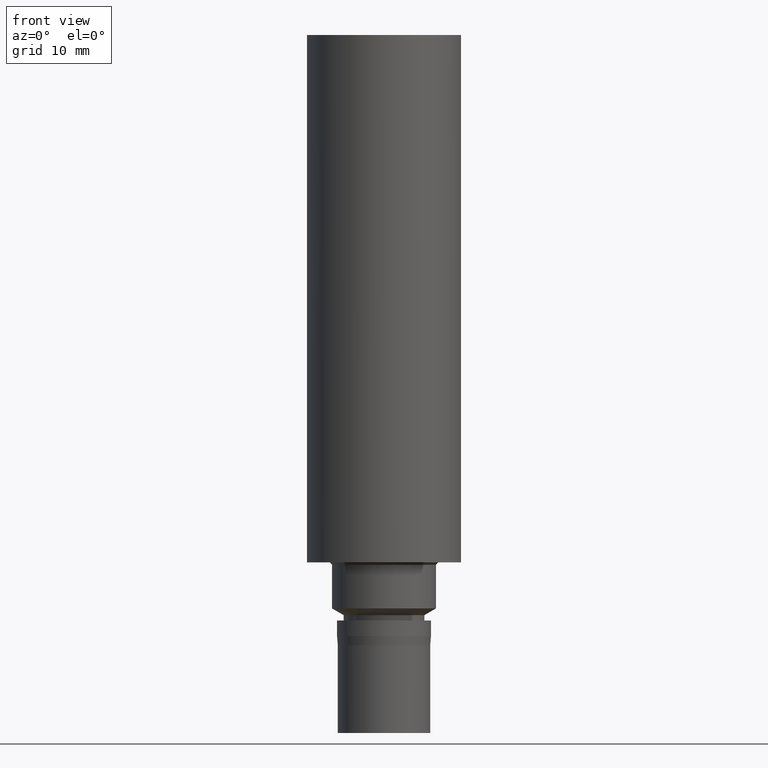
[diagram: clean part render]
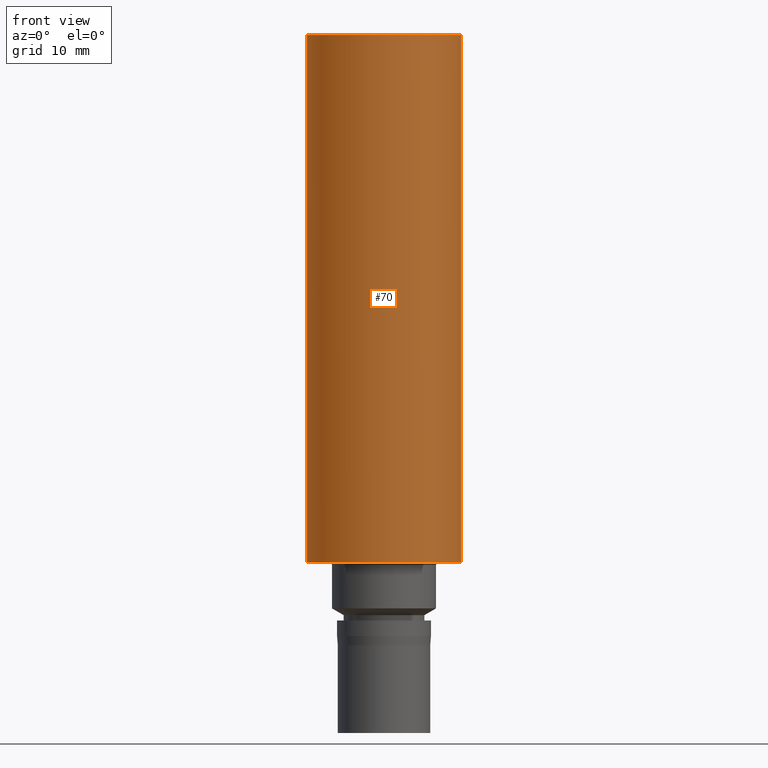
[diagram: same view with one face highlighted and labeled with its STEP entity id]
A machine part, front view. The second image highlights one B-rep face of the part: STEP entity #70.
In plain terms, the highlighted cylindrical surface (bore or boss wall) has radius 10 mm, axis along (0, 0, -1).
Its self-contained STEP definition (entity closure, byte-faithful):
#67=EDGE_CURVE('Unnamed[1]',#155,#155,#156,.T.);
#70=ADVANCED_FACE('Unnamed[1]',(#159,#160),#161,.T.);
#87=EDGE_CURVE('Unnamed[1]',#184,#184,#185,.T.);
#155=VERTEX_POINT('',#263);
#156=CIRCLE('',#264,10.0000000000007);
#159=FACE_BOUND('',#268,.T.);
#160=FACE_BOUND('',#269,.T.);
#161=CYLINDRICAL_SURFACE('',#270,10.0000000000001);
#184=VERTEX_POINT('',#299);
#185=CIRCLE('',#300,9.99999999999962);
#263=CARTESIAN_POINT('',(-5.51091059616327E-015,10.0000000000007,90.0000000000029));
#264=AXIS2_PLACEMENT_3D('',#377,#378,#379);
#268=EDGE_LOOP('',(#381));
#269=EDGE_LOOP('',(#382));
#270=AXIS2_PLACEMENT_3D('',#383,#384,#385);
#299=CARTESIAN_POINT('',(-1.34711147906211E-015,9.99999999999962,22.0000000000003));
#300=AXIS2_PLACEMENT_3D('',#407,#408,#409);
#377=CARTESIAN_POINT('',(-5.51091059616327E-015,-1.10218211923265E-014,90.0000000000029));
#378=DIRECTION('',(6.12323399573677E-017,1.22464679914735E-016,-1.0));
#379=DIRECTION('',(-1.23259516440783E-032,1.0,1.22464679914735E-016));
#381=ORIENTED_EDGE('',*,*,#87,.F.);
#382=ORIENTED_EDGE('',*,*,#67,.T.);
#383=CARTESIAN_POINT('',(-3.42901103761269E-015,-6.85802207522537E-015,56.0000000000016));
#384=DIRECTION('',(6.12323399573677E-017,1.22464679914735E-016,-1.0));
#385=DIRECTION('',(-1.23259516440783E-032,1.0,1.22464679914735E-016));
#407=CARTESIAN_POINT('',(-1.34711147906211E-015,-2.69422295812422E-015,22.0000000000003));
#408=DIRECTION('',(6.12323399573677E-017,1.22464679914735E-016,-1.0));
#409=DIRECTION('',(-1.23259516440783E-032,1.0,1.22464679914735E-016));